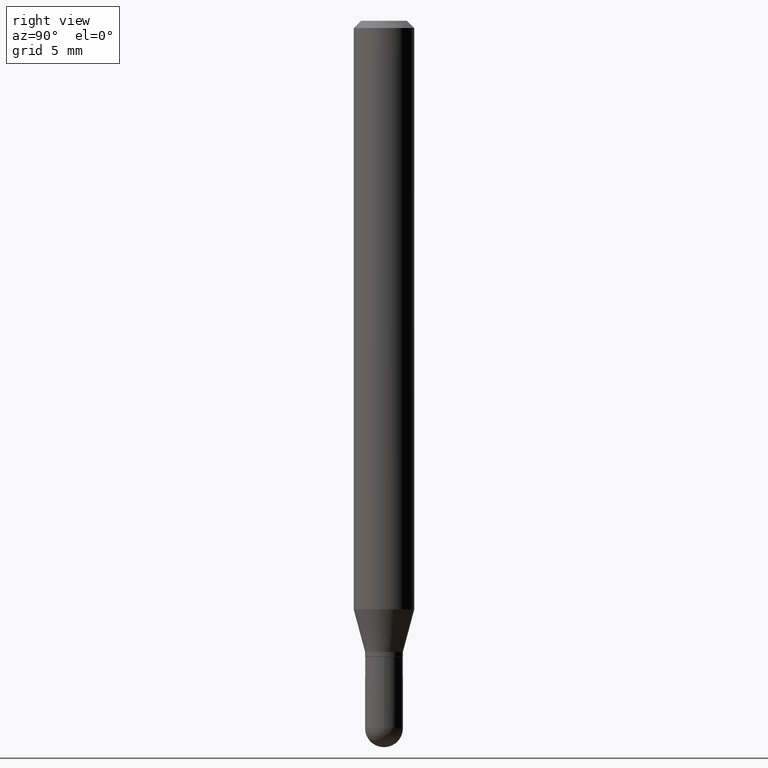
[diagram: clean part render]
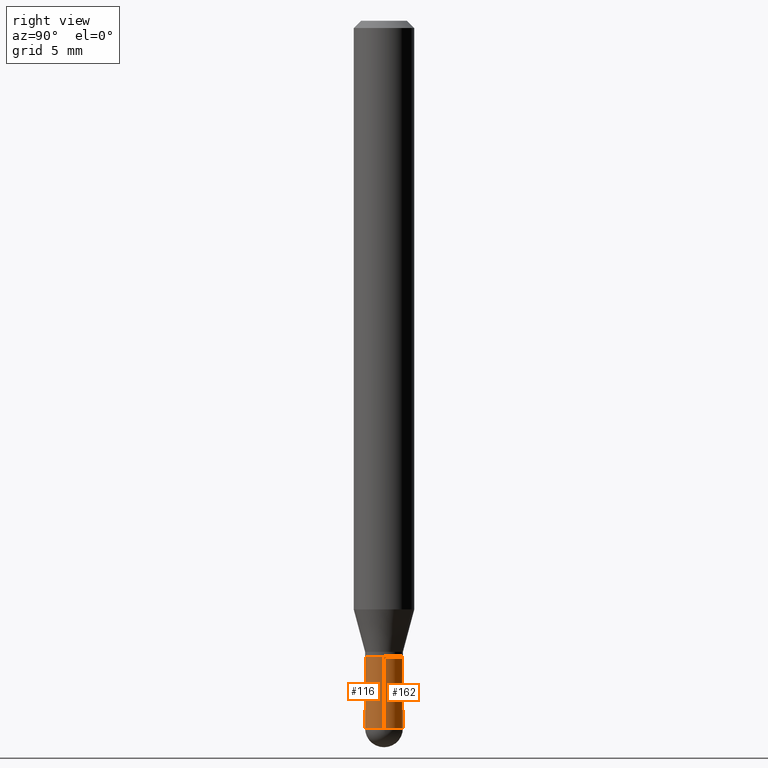
[diagram: same view with one multi-face feature highlighted, each face labeled with its STEP entity id]
A machine part, right view. The highlighted faces form ONE feature: a constant-radius fillet chain: 2 tangent blend faces with common blend radius 0.9919 mm. The faces share edges in the B-rep.
Their STEP definitions:
[1] entity #162 (Cylinder):
#15 = AXIS2_PLACEMENT_3D ( 'NONE', #209, #465, #86 ) ;
#29 = CARTESIAN_POINT ( 'NONE',  ( 2.774669383143552228E-16, 0.03904999999999496374, -1.460950000000000193 ) ) ;
#37 = ORIENTED_EDGE ( 'NONE', *, *, #453, .T. ) ;
#39 = ORIENTED_EDGE ( 'NONE', *, *, #449, .F. ) ;
#55 = CARTESIAN_POINT ( 'NONE',  ( 0.000000000000000000, 0.000000000000000000, 0.000000000000000000 ) ) ;
#59 = DIRECTION ( 'NONE',  ( -2.445468806185136877E-29, 3.491481338843145188E-15, 1.000000000000000000 ) ) ;
#60 = LINE ( 'NONE', #292, #215 ) ;
#73 = EDGE_CURVE ( 'NONE', #388, #282, #298, .T. ) ;
#78 = AXIS2_PLACEMENT_3D ( 'NONE', #328, #331, #224 ) ;
#85 = EDGE_CURVE ( 'NONE', #388, #381, #60, .T. ) ;
#86 = DIRECTION ( 'NONE',  ( 1.000000000000000000, -6.982962677686266711E-15, 0.000000000000000000 ) ) ;
#117 = DIRECTION ( 'NONE',  ( 1.000000000000000000, -6.982962677686265133E-15, 0.000000000000000000 ) ) ;
#125 = DIRECTION ( 'NONE',  ( -2.445468806185136877E-29, 3.491481338843145188E-15, 1.000000000000000000 ) ) ;
#131 = ORIENTED_EDGE ( 'NONE', *, *, #73, .T. ) ;
#140 = FACE_OUTER_BOUND ( 'NONE', #483, .T. ) ;
#142 = CIRCLE ( 'NONE', #214, 0.03905000000000000832 ) ;
#146 = CARTESIAN_POINT ( 'NONE',  ( 3.572707652396175485E-29, -5.100879661982893620E-15, -1.460950000000000193 ) ) ;
#158 = CARTESIAN_POINT ( 'NONE',  ( -0.03905000000000000832, 2.774669383143191817E-16, -1.920844152744540988E-30 ) ) ;
#159 = AXIS2_PLACEMENT_3D ( 'NONE', #55, #174, #216 ) ;
#162 = ADVANCED_FACE ( 'NONE', ( #140 ), #219, .T. ) ;
#165 = CARTESIAN_POINT ( 'NONE',  ( 0.03905000000000000832, -5.115282022505621222E-15, -1.460950000000000193 ) ) ;
#174 = DIRECTION ( 'NONE',  ( -2.445468806185136597E-29, 3.491481338843145583E-15, 1.000000000000000000 ) ) ;
#179 = VECTOR ( 'NONE', #125, 39.37007874015748143 ) ;
#206 = CARTESIAN_POINT ( 'NONE',  ( 0.03905000000000000138, -4.856999690464699711E-15, -1.313000000000000167 ) ) ;
#209 = CARTESIAN_POINT ( 'NONE',  ( 3.210900542521084585E-29, -4.584314997901050598E-15, -1.313000000000000167 ) ) ;
#210 = EDGE_CURVE ( 'NONE', #282, #507, #142, .T. ) ;
#214 = AXIS2_PLACEMENT_3D ( 'NONE', #146, #420, #117 ) ;
#215 = VECTOR ( 'NONE', #59, 39.37007874015748143 ) ;
#216 = DIRECTION ( 'NONE',  ( 1.000000000000000000, -6.982962677686266711E-15, 4.876176775795935232E-29 ) ) ;
#219 = CYLINDRICAL_SURFACE ( 'NONE', #159, 0.03905000000000000832 ) ;
#224 = DIRECTION ( 'NONE',  ( 1.000000000000000000, -6.982962677686265133E-15, 0.000000000000000000 ) ) ;
#240 = CARTESIAN_POINT ( 'NONE',  ( -0.03905000000000000832, -4.565130391627653569E-15, -1.460950000000000193 ) ) ;
#246 = VERTEX_POINT ( 'NONE', #344 ) ;
#282 = VERTEX_POINT ( 'NONE', #29 ) ;
#292 = CARTESIAN_POINT ( 'NONE',  ( 0.03905000000000000832, -2.726846925636487675E-16, 1.904147030948313202E-30 ) ) ;
#298 = CIRCLE ( 'NONE', #78, 0.03905000000000000832 ) ;
#324 = ORIENTED_EDGE ( 'NONE', *, *, #85, .F. ) ;
#328 = CARTESIAN_POINT ( 'NONE',  ( 3.572707652396175485E-29, -5.100879661982893620E-15, -1.460950000000000193 ) ) ;
#331 = DIRECTION ( 'NONE',  ( -2.445468806185136597E-29, 3.491481338843145583E-15, 1.000000000000000000 ) ) ;
#344 = CARTESIAN_POINT ( 'NONE',  ( -0.03905000000000000138, -4.565130391627653569E-15, -1.313000000000000167 ) ) ;
#381 = VERTEX_POINT ( 'NONE', #206 ) ;
#388 = VERTEX_POINT ( 'NONE', #165 ) ;
#420 = DIRECTION ( 'NONE',  ( -2.445468806185136597E-29, 3.491481338843145583E-15, 1.000000000000000000 ) ) ;
#432 = LINE ( 'NONE', #158, #179 ) ;
#449 = EDGE_CURVE ( 'NONE', #381, #246, #461, .T. ) ;
#453 = EDGE_CURVE ( 'NONE', #507, #246, #432, .T. ) ;
#460 = ORIENTED_EDGE ( 'NONE', *, *, #210, .T. ) ;
#461 = CIRCLE ( 'NONE', #15, 0.03905000000000000138 ) ;
#465 = DIRECTION ( 'NONE',  ( -2.445468806185136597E-29, 3.491481338843145583E-15, 1.000000000000000000 ) ) ;
#483 = EDGE_LOOP ( 'NONE', ( #460, #37, #39, #324, #131 ) ) ;
#507 = VERTEX_POINT ( 'NONE', #240 ) ;
[2] entity #116 (Cylinder):
#8 = ORIENTED_EDGE ( 'NONE', *, *, #85, .T. ) ;
#23 = CIRCLE ( 'NONE', #430, 0.03905000000000000832 ) ;
#31 = AXIS2_PLACEMENT_3D ( 'NONE', #290, #220, #95 ) ;
#46 = DIRECTION ( 'NONE',  ( -2.445468806185136597E-29, 3.491481338843145583E-15, 1.000000000000000000 ) ) ;
#59 = DIRECTION ( 'NONE',  ( -2.445468806185136877E-29, 3.491481338843145188E-15, 1.000000000000000000 ) ) ;
#60 = LINE ( 'NONE', #292, #215 ) ;
#61 = CIRCLE ( 'NONE', #245, 0.03905000000000000138 ) ;
#85 = EDGE_CURVE ( 'NONE', #388, #381, #60, .T. ) ;
#95 = DIRECTION ( 'NONE',  ( 1.000000000000000000, -6.982962677686265133E-15, 0.000000000000000000 ) ) ;
#100 = EDGE_CURVE ( 'NONE', #507, #211, #23, .T. ) ;
#115 = CARTESIAN_POINT ( 'NONE',  ( -2.726846925636134167E-16, -0.03905000000000517085, -1.460950000000000193 ) ) ;
#116 = ADVANCED_FACE ( 'NONE', ( #407 ), #255, .T. ) ;
#122 = EDGE_CURVE ( 'NONE', #211, #388, #322, .T. ) ;
#125 = DIRECTION ( 'NONE',  ( -2.445468806185136877E-29, 3.491481338843145188E-15, 1.000000000000000000 ) ) ;
#133 = DIRECTION ( 'NONE',  ( 1.000000000000000000, -6.982962677686265133E-15, 0.000000000000000000 ) ) ;
#135 = DIRECTION ( 'NONE',  ( -2.445468806185136597E-29, 3.491481338843145583E-15, 1.000000000000000000 ) ) ;
#158 = CARTESIAN_POINT ( 'NONE',  ( -0.03905000000000000832, 2.774669383143191817E-16, -1.920844152744540988E-30 ) ) ;
#165 = CARTESIAN_POINT ( 'NONE',  ( 0.03905000000000000832, -5.115282022505621222E-15, -1.460950000000000193 ) ) ;
#179 = VECTOR ( 'NONE', #125, 39.37007874015748143 ) ;
#206 = CARTESIAN_POINT ( 'NONE',  ( 0.03905000000000000138, -4.856999690464699711E-15, -1.313000000000000167 ) ) ;
#211 = VERTEX_POINT ( 'NONE', #115 ) ;
#215 = VECTOR ( 'NONE', #59, 39.37007874015748143 ) ;
#220 = DIRECTION ( 'NONE',  ( -2.445468806185136597E-29, 3.491481338843145583E-15, 1.000000000000000000 ) ) ;
#240 = CARTESIAN_POINT ( 'NONE',  ( -0.03905000000000000832, -4.565130391627653569E-15, -1.460950000000000193 ) ) ;
#245 = AXIS2_PLACEMENT_3D ( 'NONE', #349, #46, #470 ) ;
#246 = VERTEX_POINT ( 'NONE', #344 ) ;
#251 = ORIENTED_EDGE ( 'NONE', *, *, #122, .T. ) ;
#255 = CYLINDRICAL_SURFACE ( 'NONE', #508, 0.03905000000000000832 ) ;
#259 = CARTESIAN_POINT ( 'NONE',  ( 3.572707652396175485E-29, -5.100879661982893620E-15, -1.460950000000000193 ) ) ;
#263 = CARTESIAN_POINT ( 'NONE',  ( 0.000000000000000000, 0.000000000000000000, 0.000000000000000000 ) ) ;
#286 = ORIENTED_EDGE ( 'NONE', *, *, #100, .T. ) ;
#290 = CARTESIAN_POINT ( 'NONE',  ( 3.572707652396175485E-29, -5.100879661982893620E-15, -1.460950000000000193 ) ) ;
#292 = CARTESIAN_POINT ( 'NONE',  ( 0.03905000000000000832, -2.726846925636487675E-16, 1.904147030948313202E-30 ) ) ;
#322 = CIRCLE ( 'NONE', #31, 0.03905000000000000832 ) ;
#325 = ORIENTED_EDGE ( 'NONE', *, *, #416, .F. ) ;
#344 = CARTESIAN_POINT ( 'NONE',  ( -0.03905000000000000138, -4.565130391627653569E-15, -1.313000000000000167 ) ) ;
#349 = CARTESIAN_POINT ( 'NONE',  ( 3.210900542521084585E-29, -4.584314997901050598E-15, -1.313000000000000167 ) ) ;
#371 = DIRECTION ( 'NONE',  ( 1.000000000000000000, -6.982962677686266711E-15, 4.876176775795935232E-29 ) ) ;
#372 = DIRECTION ( 'NONE',  ( -2.445468806185136597E-29, 3.491481338843145583E-15, 1.000000000000000000 ) ) ;
#381 = VERTEX_POINT ( 'NONE', #206 ) ;
#388 = VERTEX_POINT ( 'NONE', #165 ) ;
#407 = FACE_OUTER_BOUND ( 'NONE', #468, .T. ) ;
#416 = EDGE_CURVE ( 'NONE', #246, #381, #61, .T. ) ;
#430 = AXIS2_PLACEMENT_3D ( 'NONE', #259, #135, #133 ) ;
#432 = LINE ( 'NONE', #158, #179 ) ;
#439 = ORIENTED_EDGE ( 'NONE', *, *, #453, .F. ) ;
#453 = EDGE_CURVE ( 'NONE', #507, #246, #432, .T. ) ;
#468 = EDGE_LOOP ( 'NONE', ( #439, #286, #251, #8, #325 ) ) ;
#470 = DIRECTION ( 'NONE',  ( 1.000000000000000000, -6.982962677686266711E-15, 0.000000000000000000 ) ) ;
#507 = VERTEX_POINT ( 'NONE', #240 ) ;
#508 = AXIS2_PLACEMENT_3D ( 'NONE', #263, #372, #371 ) ;